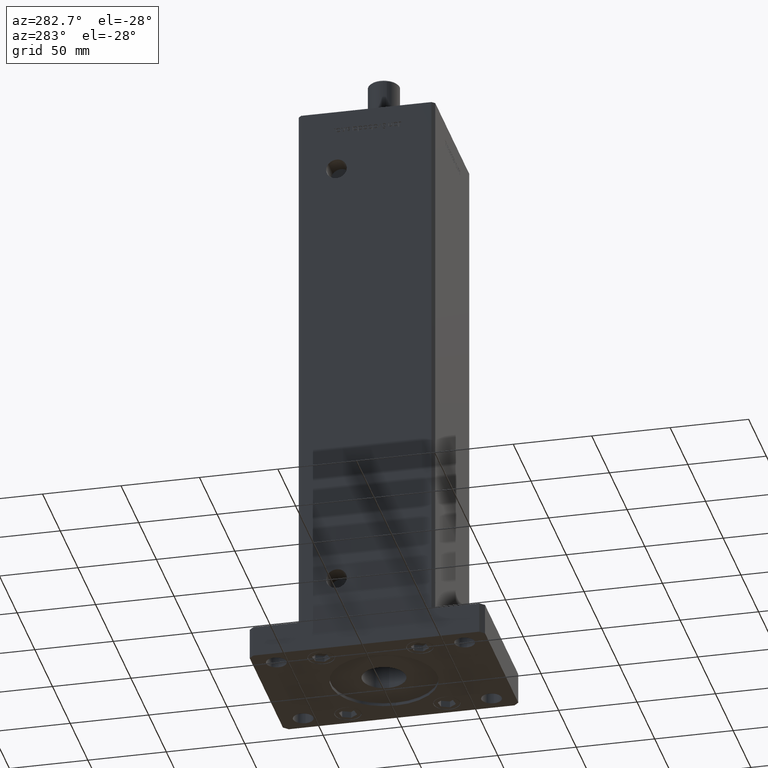
[diagram: clean part render]
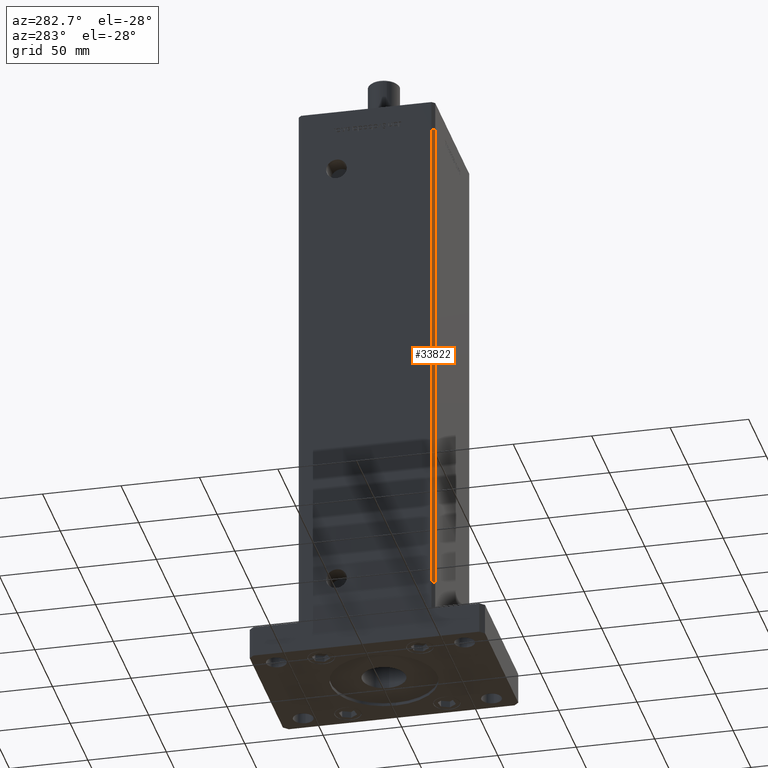
[diagram: same view with one face highlighted and labeled with its STEP entity id]
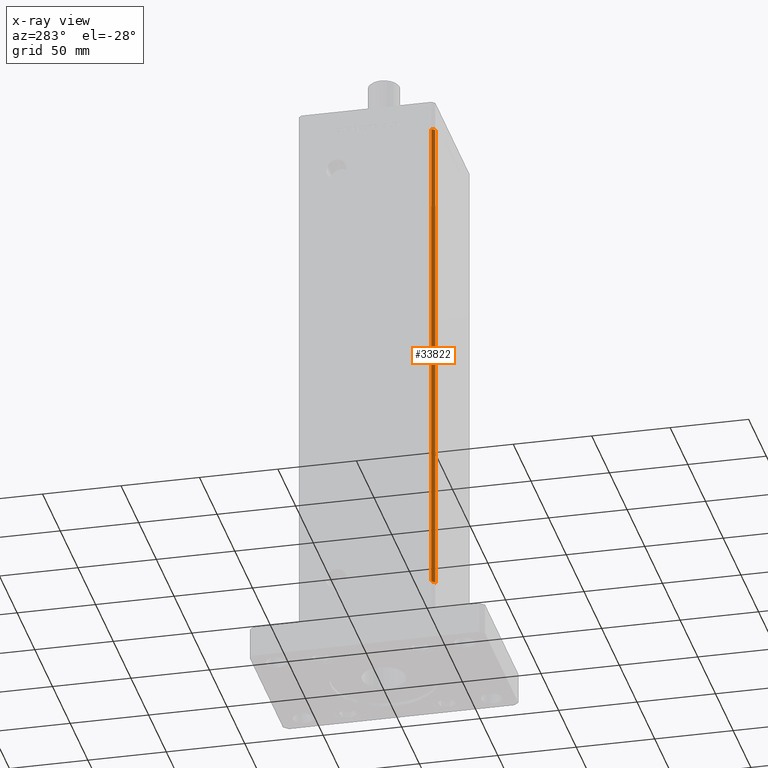
[diagram: x-ray of the same camera — body ghosted, the highlighted face saturated]
A machine part, auxiliary view. The second image highlights one B-rep face of the part: STEP entity #33822.
The next image is the same camera in x-ray: the body ghosted, the highlighted face saturated — about 0% of this face is hidden behind the body in this view.
In plain terms, the highlighted planar face has unit normal (0.7071, 0.7071, 0).
Its self-contained STEP definition (entity closure, byte-faithful):
#211 = ORIENTED_EDGE ( 'NONE', *, *, #9652, .T. ) ;
#2359 = CARTESIAN_POINT ( 'NONE',  ( -47.99999999999998579, -43.50000000000000000, 318.5000000000000000 ) ) ;
#5215 = VECTOR ( 'NONE', #47805, 1000.000000000000000 ) ;
#6281 = LINE ( 'NONE', #48199, #43688 ) ;
#9652 = EDGE_CURVE ( 'NONE', #44035, #37552, #6281, .T. ) ;
#15338 = EDGE_CURVE ( 'NONE', #30282, #26549, #36297, .T. ) ;
#16559 = CARTESIAN_POINT ( 'NONE',  ( -47.99999999999998579, -43.50000000000000000, 318.5000000000000000 ) ) ;
#17456 = CARTESIAN_POINT ( 'NONE',  ( -49.99999999999998579, -41.49999999999999289, 318.5000000000000000 ) ) ;
#17911 = AXIS2_PLACEMENT_3D ( 'NONE', #30163, #50449, #25773 ) ;
#18610 = DIRECTION ( 'NONE',  ( -0.000000000000000000, -0.000000000000000000, -1.000000000000000000 ) ) ;
#19797 = EDGE_CURVE ( 'NONE', #44035, #30282, #42104, .T. ) ;
#20180 = CARTESIAN_POINT ( 'NONE',  ( -49.99999999999998579, -41.49999999999999289, 0.000000000000000000 ) ) ;
#24857 = DIRECTION ( 'NONE',  ( 0.7071067811865474617, -0.7071067811865474617, 0.000000000000000000 ) ) ;
#25773 = DIRECTION ( 'NONE',  ( -0.7071067811865474617, 0.7071067811865474617, 0.000000000000000000 ) ) ;
#25939 = VECTOR ( 'NONE', #51460, 1000.000000000000114 ) ;
#26226 = ORIENTED_EDGE ( 'NONE', *, *, #15338, .F. ) ;
#26549 = VERTEX_POINT ( 'NONE', #35487 ) ;
#27901 = CARTESIAN_POINT ( 'NONE',  ( -49.99999999999998579, -41.49999999999999289, 318.5000000000000000 ) ) ;
#29092 = FACE_OUTER_BOUND ( 'NONE', #47348, .T. ) ;
#29911 = PLANE ( 'NONE',  #17911 ) ;
#30163 = CARTESIAN_POINT ( 'NONE',  ( -49.99999999999998579, -41.49999999999999289, 318.5000000000000000 ) ) ;
#30282 = VERTEX_POINT ( 'NONE', #16559 ) ;
#32067 = VECTOR ( 'NONE', #24857, 1000.000000000000114 ) ;
#33822 = ADVANCED_FACE ( 'NONE', ( #29092 ), #29911, .F. ) ;
#35487 = CARTESIAN_POINT ( 'NONE',  ( -47.99999999999998579, -43.50000000000000000, 0.000000000000000000 ) ) ;
#36297 = LINE ( 'NONE', #2359, #5215 ) ;
#37552 = VERTEX_POINT ( 'NONE', #20180 ) ;
#39390 = CARTESIAN_POINT ( 'NONE',  ( -49.99999999999998579, -41.49999999999999289, 0.000000000000000000 ) ) ;
#39486 = ORIENTED_EDGE ( 'NONE', *, *, #19797, .F. ) ;
#40217 = LINE ( 'NONE', #39390, #25939 ) ;
#42104 = LINE ( 'NONE', #17456, #32067 ) ;
#42850 = EDGE_CURVE ( 'NONE', #37552, #26549, #40217, .T. ) ;
#43688 = VECTOR ( 'NONE', #18610, 1000.000000000000000 ) ;
#44035 = VERTEX_POINT ( 'NONE', #27901 ) ;
#47348 = EDGE_LOOP ( 'NONE', ( #48678, #26226, #39486, #211 ) ) ;
#47805 = DIRECTION ( 'NONE',  ( -0.000000000000000000, -0.000000000000000000, -1.000000000000000000 ) ) ;
#48199 = CARTESIAN_POINT ( 'NONE',  ( -49.99999999999998579, -41.49999999999999289, 318.5000000000000000 ) ) ;
#48678 = ORIENTED_EDGE ( 'NONE', *, *, #42850, .T. ) ;
#50449 = DIRECTION ( 'NONE',  ( 0.7071067811865475727, 0.7071067811865475727, -0.000000000000000000 ) ) ;
#51460 = DIRECTION ( 'NONE',  ( 0.7071067811865474617, -0.7071067811865474617, 0.000000000000000000 ) ) ;